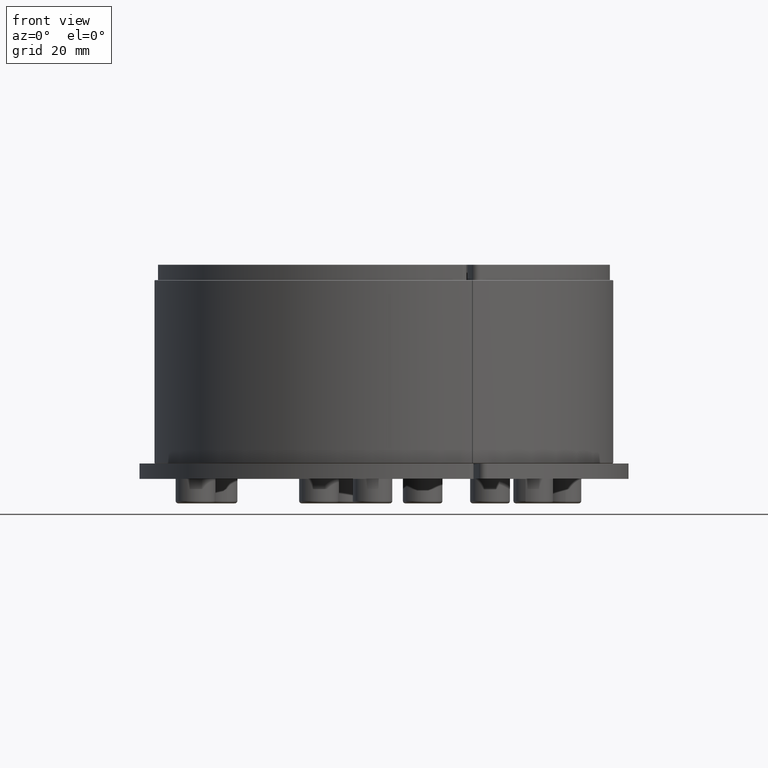
[diagram: clean part render]
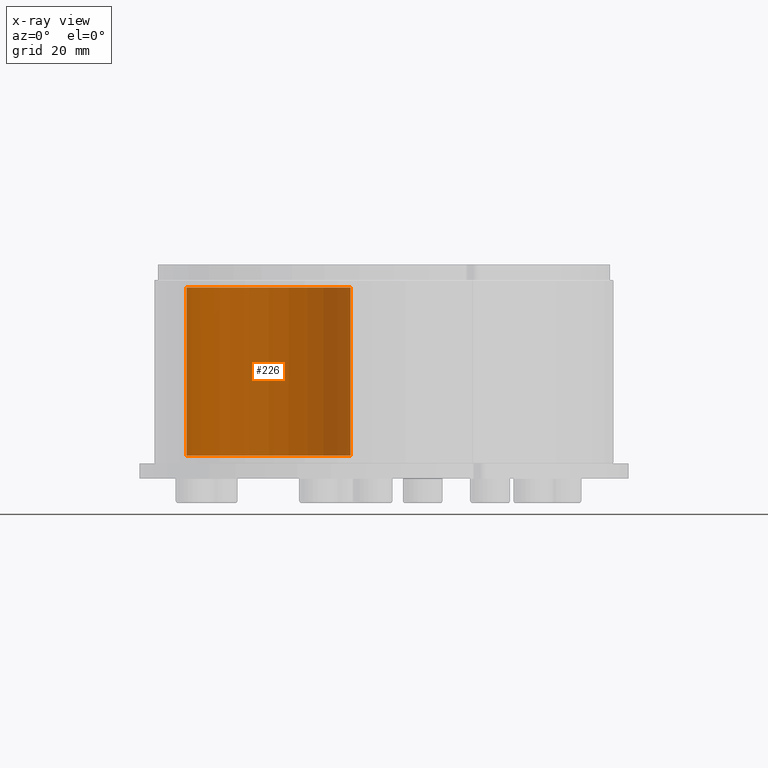
[diagram: x-ray — body ghosted, one internal face saturated and labeled with its STEP entity id]
A machine part, front view, then the same camera in x-ray: the body is ghosted and one INTERNAL B-rep face — a face not visible from any outside direction — is saturated and labeled: STEP entity #226.
In plain terms, the highlighted cylindrical surface (partial cylindrical patch) has radius 27 mm, axis along (0, 0, 1).
Its self-contained STEP definition (entity closure, byte-faithful):
#185=CARTESIAN_POINT('',(0.0,0.0,0.0));
#186=DIRECTION('',(0.0,0.0,1.0));
#187=DIRECTION('',(1.0,0.0,0.0));
#188=AXIS2_PLACEMENT_3D('',#185,#186,#187);
#189=CYLINDRICAL_SURFACE('',#188,27.0);
#190=CARTESIAN_POINT('',(27.0,0.0,0.0));
#191=VERTEX_POINT('',#190);
#192=CARTESIAN_POINT('',(-27.0,0.0,0.0));
#193=VERTEX_POINT('',#192);
#194=CARTESIAN_POINT('',(0.0,0.0,0.0));
#195=DIRECTION('',(0.0,0.0,1.0));
#196=DIRECTION('',(1.0,0.0,0.0));
#197=AXIS2_PLACEMENT_3D('',#194,#195,#196);
#198=CIRCLE('',#197,27.0);
#199=EDGE_CURVE('',#191,#193,#198,.T.);
#200=ORIENTED_EDGE('',*,*,#199,.T.);
#201=CARTESIAN_POINT('',(-27.0,0.0,55.0));
#202=VERTEX_POINT('',#201);
#203=CARTESIAN_POINT('',(-27.0,0.0,0.0));
#204=DIRECTION('',(0.0,0.0,1.0));
#205=VECTOR('',#204,55.0);
#206=LINE('',#203,#205);
#207=EDGE_CURVE('',#193,#202,#206,.T.);
#208=ORIENTED_EDGE('',*,*,#207,.T.);
#209=CARTESIAN_POINT('',(27.0,0.0,55.0));
#210=VERTEX_POINT('',#209);
#211=CARTESIAN_POINT('',(0.0,0.0,55.0));
#212=DIRECTION('',(0.0,0.0,1.0));
#213=DIRECTION('',(1.0,0.0,0.0));
#214=AXIS2_PLACEMENT_3D('',#211,#212,#213);
#215=CIRCLE('',#214,27.0);
#216=EDGE_CURVE('',#210,#202,#215,.T.);
#217=ORIENTED_EDGE('',*,*,#216,.F.);
#218=CARTESIAN_POINT('',(27.0,0.0,0.0));
#219=DIRECTION('',(0.0,0.0,1.0));
#220=VECTOR('',#219,55.0);
#221=LINE('',#218,#220);
#222=EDGE_CURVE('',#191,#210,#221,.T.);
#223=ORIENTED_EDGE('',*,*,#222,.F.);
#224=EDGE_LOOP('',(#200,#208,#217,#223));
#225=FACE_OUTER_BOUND('',#224,.T.);
#226=ADVANCED_FACE('',(#225),#189,.T.);